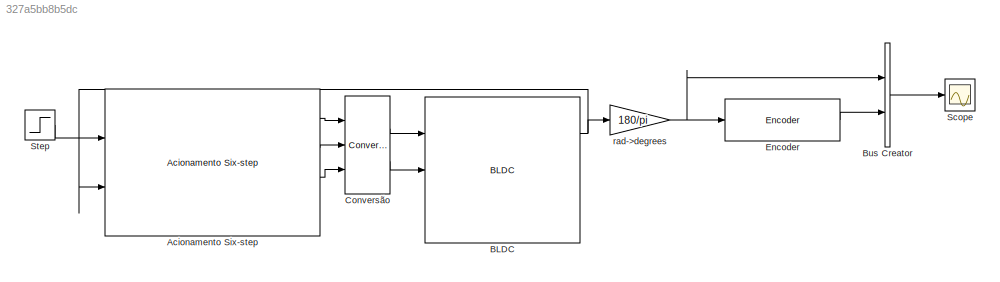
MODEL slx_327a5bb8b5dc
KIND model
BLOCK [Reference] Acionamento Six-step  REF=BLDC/Acionamento Six-step
  P = 8
  Ports = [2, 4]
  SourceBlock = BLDC/Acionamento Six-step
  SourceType = Acionamento six-step
BLOCK [Reference] BLDC  REF=BLDC/BLDC
  F_slip = 0
  F_stick = 0
  J = 1.39e-6
  Kd = 0
  Ke = 15.7e-3/1.19
  Kt = 15.7e-3/1.19
  L = 2.04/2000
  P = 8
  Ports = [3, 3]
  R = 10.1/2
  SourceBlock = BLDC/BLDC
  SourceType = Simulador de um motor BLDC
  default_fcem = on
  fcem_a = fcem_a
  fcem_b = fcem_b
  fcem_c = fcem_c
BLOCK [BusCreator] Bus Creator
  DisplayOption = bar
  Inputs = 2
  Ports = [2, 1]
BLOCK [Reference] Conversão  REF=BLDC/Conversão
  Ports = [3, 2]
  SourceBlock = BLDC/Conversão
  SourceType = SubSystem
BLOCK [Reference] Encoder  REF=Encoder/Encoder
  Nr = 2
  Ports = [1, 1]
  SourceBlock = Encoder/Encoder
  SourceType = Encoder de quadratura
BLOCK [Scope] Scope
  DataFormat = StructureWithTime
  Floating = off
  LegendLocations = 0.86372     0.92667      0.0625    0.036327
  LimitDataPoints = off
  NumInputPorts = 1
  Ports = [1]
  SampleTime = 0
  ShowLegends = on
BLOCK [Step] Step
  After = 0
  Before = 3
  SampleTime = 0
  Time = 0.3
BLOCK [Gain] rad->degrees
  Gain = 180/pi
  OutDataTypeStr = Inherit: Inherit via internal rule
  ParamDataTypeStr = Inherit: Inherit via internal rule
  SaturateOnIntegerOverflow = off
LINE Acionamento Six-step:1 -> Conversão:1
LINE Acionamento Six-step:2 -> Conversão:2
LINE Acionamento Six-step:3 -> Conversão:3
NET BLDC:1 -> Acionamento Six-step:2, rad->degrees:1
LINE Bus Creator:1 -> Scope:1
LINE Conversão:1 -> BLDC:1
LINE Conversão:2 -> BLDC:2
LINE Encoder:1 -> Bus Creator:2
LINE Step:1 -> Acionamento Six-step:1
NET rad->degrees:1 -> Bus Creator:1, Encoder:1
note: NET lines group one-source signal fan-out (src -> all destinations, sorted); 1:1 wires keep LINE
